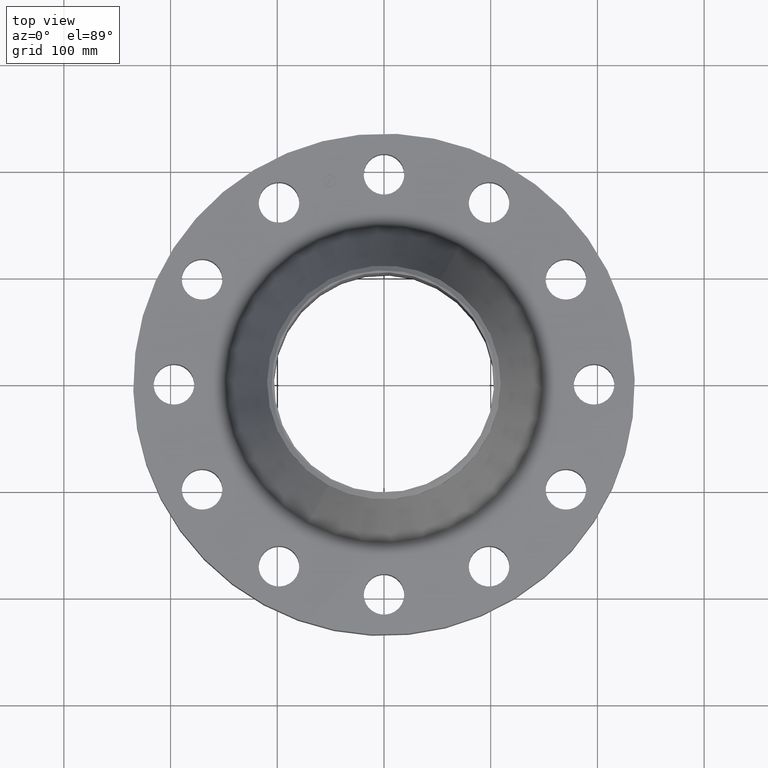
[diagram: clean part render]
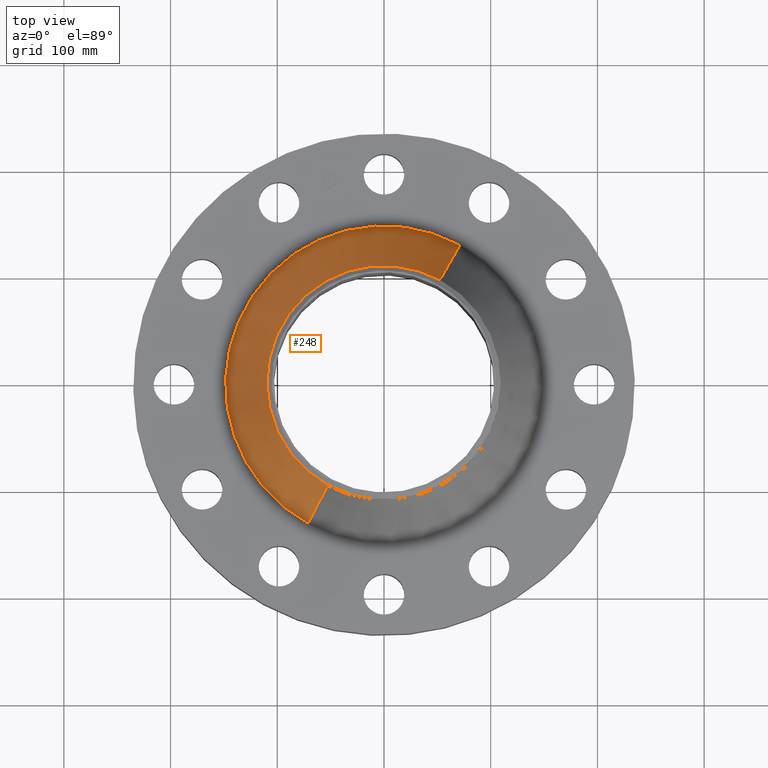
[diagram: same view with one face highlighted and labeled with its STEP entity id]
A machine part, top view. The second image highlights one B-rep face of the part: STEP entity #248.
In plain terms, the highlighted conical surface has half-angle 23.96 deg.
Its self-contained STEP definition (entity closure, byte-faithful):
#196=AXIS2_PLACEMENT_3D('Circle Axis2P3D',#194,#195,$) ;
#209=AXIS2_PLACEMENT_3D('Cone Axis2P3D',#206,#207,#208) ;
#239=AXIS2_PLACEMENT_3D('Circle Axis2P3D',#237,#238,$) ;
#167=CARTESIAN_POINT('Vertex',(2.8014412117,5.12800374112,2.5712685886)) ;
#174=CARTESIAN_POINT('Vertex',(-2.8014412117,-5.12800374112,2.5712685886)) ;
#194=CARTESIAN_POINT('Axis2P3D Location',(0.,0.,2.5712685886)) ;
#206=CARTESIAN_POINT('Axis2P3D Location',(0.,0.,6.01044891099)) ;
#211=CARTESIAN_POINT('Line Origine',(2.43508120539,4.45738624785,4.29085874979)) ;
#215=CARTESIAN_POINT('Vertex',(2.06872119909,3.78676875457,6.01044891099)) ;
#222=CARTESIAN_POINT('Vertex',(-2.06872119909,-3.78676875457,6.01044891099)) ;
#225=CARTESIAN_POINT('Line Origine',(-2.43508120539,-4.45738624785,4.29085874979)) ;
#237=CARTESIAN_POINT('Axis2P3D Location',(0.,0.,6.01044891099)) ;
#195=DIRECTION('Axis2P3D Direction',(0.,0.,-0.0393700787402)) ;
#207=DIRECTION('Axis2P3D Direction',(0.,0.,-0.0393700787402)) ;
#208=DIRECTION('Axis2P3D XDirection',(-0.0188750212049,-0.0345504945626,0.)) ;
#212=DIRECTION('Vector Direction',(0.00766505353171,0.0140307863761,-0.0359775914707)) ;
#226=DIRECTION('Vector Direction',(-0.00766505353171,-0.0140307863761,-0.0359775914707)) ;
#238=DIRECTION('Axis2P3D Direction',(0.,0.,-0.0393700787402)) ;
#213=VECTOR('Line Direction',#212,0.0393700787402) ;
#227=VECTOR('Line Direction',#226,0.0393700787402) ;
#243=ORIENTED_EDGE('',*,*,#198,.F.) ;
#244=ORIENTED_EDGE('',*,*,#229,.T.) ;
#245=ORIENTED_EDGE('',*,*,#241,.T.) ;
#246=ORIENTED_EDGE('',*,*,#217,.F.) ;
#248=ADVANCED_FACE('PartBody',(#247),#210,.T.) ;
#197=CIRCLE('generated circle',#196,5.84332912231) ;
#240=CIRCLE('generated circle',#239,4.31500000002) ;
#210=CONICAL_SURFACE('Cone',#209,4.31500000002,0.418176868514) ;
#198=EDGE_CURVE('',#175,#168,#197,.T.) ;
#217=EDGE_CURVE('',#168,#216,#214,.F.) ;
#229=EDGE_CURVE('',#175,#223,#228,.F.) ;
#241=EDGE_CURVE('',#223,#216,#240,.T.) ;
#242=EDGE_LOOP('',(#243,#244,#245,#246)) ;
#247=FACE_OUTER_BOUND('',#242,.T.) ;
#214=LINE('Line',#211,#213) ;
#228=LINE('Line',#225,#227) ;
#168=VERTEX_POINT('',#167) ;
#175=VERTEX_POINT('',#174) ;
#216=VERTEX_POINT('',#215) ;
#223=VERTEX_POINT('',#222) ;